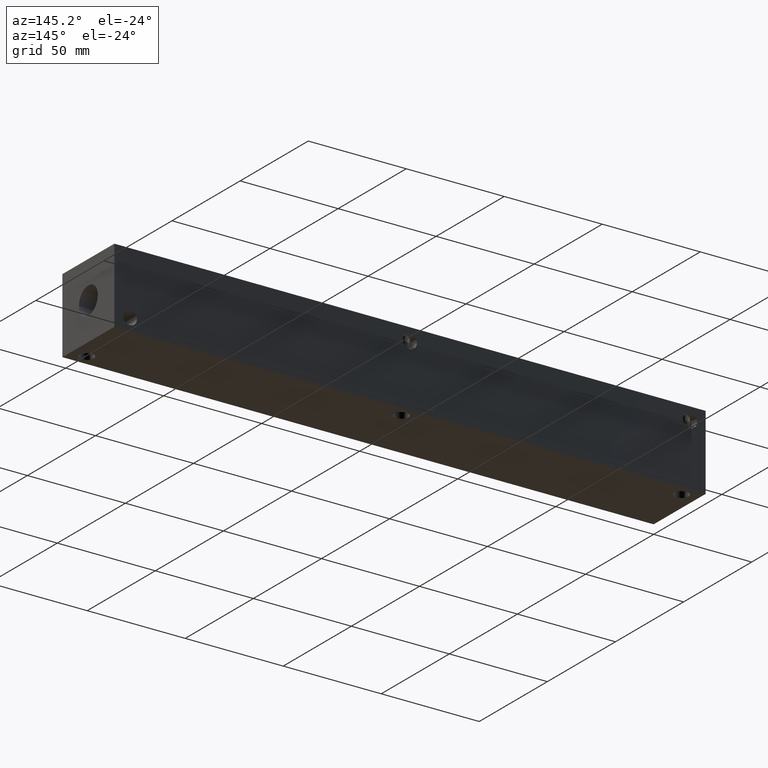
[diagram: clean part render]
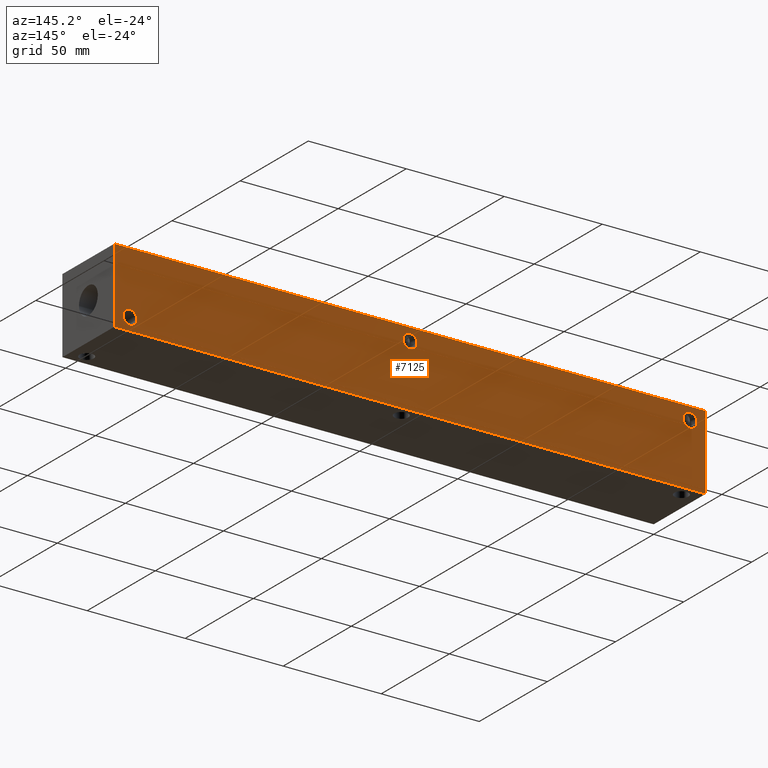
[diagram: same view with one face highlighted and labeled with its STEP entity id]
A machine part, auxiliary view. The second image highlights one B-rep face of the part: STEP entity #7125.
In plain terms, the highlighted planar face has unit normal (0, 1, 0).
Its self-contained STEP definition (entity closure, byte-faithful):
#92=CIRCLE('',#7373,3.5687);
#95=CIRCLE('',#7382,3.5687);
#98=CIRCLE('',#7391,3.5687);
#208=FACE_BOUND('',#1207,.T.);
#209=FACE_BOUND('',#1208,.T.);
#210=FACE_BOUND('',#1209,.T.);
#428=PLANE('',#7496);
#791=FACE_OUTER_BOUND('',#1206,.T.);
#1206=EDGE_LOOP('',(#6333,#6334,#6335,#6336));
#1207=EDGE_LOOP('',(#6337));
#1208=EDGE_LOOP('',(#6338));
#1209=EDGE_LOOP('',(#6339));
#1459=LINE('',#11040,#2126);
#1882=LINE('',#12254,#2549);
#1883=LINE('',#12257,#2550);
#1884=LINE('',#12258,#2551);
#2126=VECTOR('',#7855,10.);
#2549=VECTOR('',#8868,10.);
#2550=VECTOR('',#8871,10.);
#2551=VECTOR('',#8872,10.);
#3057=VERTEX_POINT('',#11037);
#3058=VERTEX_POINT('',#11039);
#3347=VERTEX_POINT('',#12008);
#3352=VERTEX_POINT('',#12024);
#3357=VERTEX_POINT('',#12040);
#3425=VERTEX_POINT('',#12250);
#3427=VERTEX_POINT('',#12256);
#3863=EDGE_CURVE('',#3057,#3058,#1459,.T.);
#4288=EDGE_CURVE('',#3347,#3347,#92,.T.);
#4297=EDGE_CURVE('',#3352,#3352,#95,.T.);
#4306=EDGE_CURVE('',#3357,#3357,#98,.T.);
#4402=EDGE_CURVE('',#3425,#3058,#1882,.T.);
#4403=EDGE_CURVE('',#3427,#3425,#1883,.T.);
#4404=EDGE_CURVE('',#3427,#3057,#1884,.T.);
#6333=ORIENTED_EDGE('',*,*,#4403,.T.);
#6334=ORIENTED_EDGE('',*,*,#4402,.T.);
#6335=ORIENTED_EDGE('',*,*,#3863,.F.);
#6336=ORIENTED_EDGE('',*,*,#4404,.F.);
#6337=ORIENTED_EDGE('',*,*,#4288,.T.);
#6338=ORIENTED_EDGE('',*,*,#4297,.T.);
#6339=ORIENTED_EDGE('',*,*,#4306,.T.);
#7125=ADVANCED_FACE('',(#791,#208,#209,#210),#428,.T.);
#7373=AXIS2_PLACEMENT_3D('',#12010,#8580,#8581);
#7382=AXIS2_PLACEMENT_3D('',#12026,#8600,#8601);
#7391=AXIS2_PLACEMENT_3D('',#12042,#8620,#8621);
#7496=AXIS2_PLACEMENT_3D('',#12255,#8869,#8870);
#7855=DIRECTION('',(-1.,0.,0.));
#8580=DIRECTION('center_axis',(0.,-1.,0.));
#8581=DIRECTION('ref_axis',(1.,0.,0.));
#8600=DIRECTION('center_axis',(0.,-1.,0.));
#8601=DIRECTION('ref_axis',(1.,0.,0.));
#8620=DIRECTION('center_axis',(0.,-1.,0.));
#8621=DIRECTION('ref_axis',(1.,0.,0.));
#8868=DIRECTION('',(0.,0.,1.));
#8869=DIRECTION('center_axis',(0.,1.,0.));
#8870=DIRECTION('ref_axis',(-1.,0.,0.));
#8871=DIRECTION('',(-1.,0.,0.));
#8872=DIRECTION('',(0.,0.,1.));
#11037=CARTESIAN_POINT('',(301.625,38.1,38.1));
#11039=CARTESIAN_POINT('',(0.,38.1,38.1));
#11040=CARTESIAN_POINT('',(301.625,38.1,38.1));
#12008=CARTESIAN_POINT('',(147.2565,38.1,31.75));
#12010=CARTESIAN_POINT('Origin',(150.8252,38.1,31.75));
#12024=CARTESIAN_POINT('',(4.3561,38.1,31.75));
#12026=CARTESIAN_POINT('Origin',(7.9248,38.1,31.75));
#12040=CARTESIAN_POINT('',(290.1061,38.1,6.35));
#12042=CARTESIAN_POINT('Origin',(293.6748,38.1,6.35));
#12250=CARTESIAN_POINT('',(0.,38.1,0.));
#12254=CARTESIAN_POINT('',(0.,38.1,0.));
#12255=CARTESIAN_POINT('Origin',(301.625,38.1,0.));
#12256=CARTESIAN_POINT('',(301.625,38.1,0.));
#12257=CARTESIAN_POINT('',(301.625,38.1,0.));
#12258=CARTESIAN_POINT('',(301.625,38.1,0.));